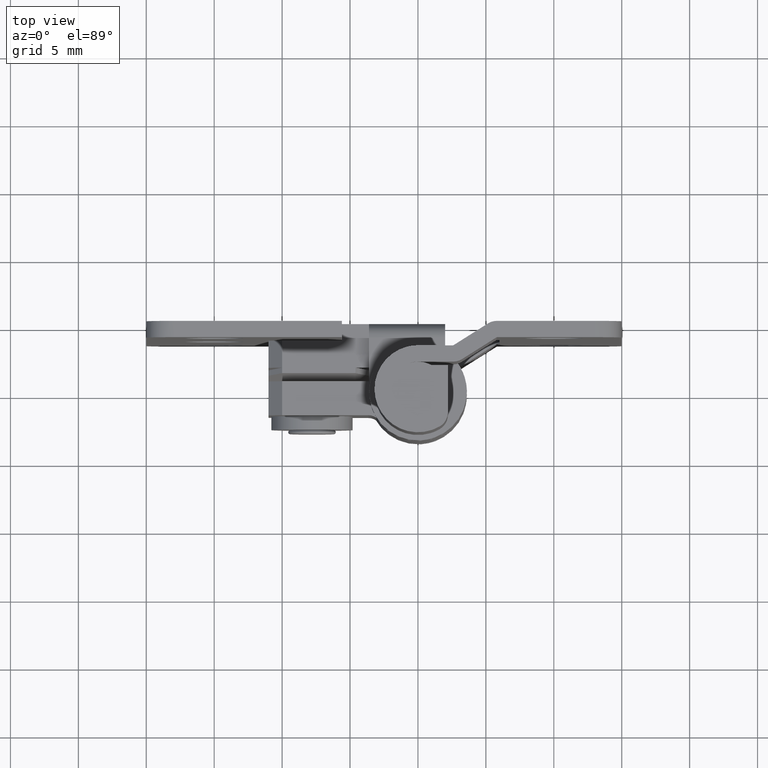
[diagram: clean part render]
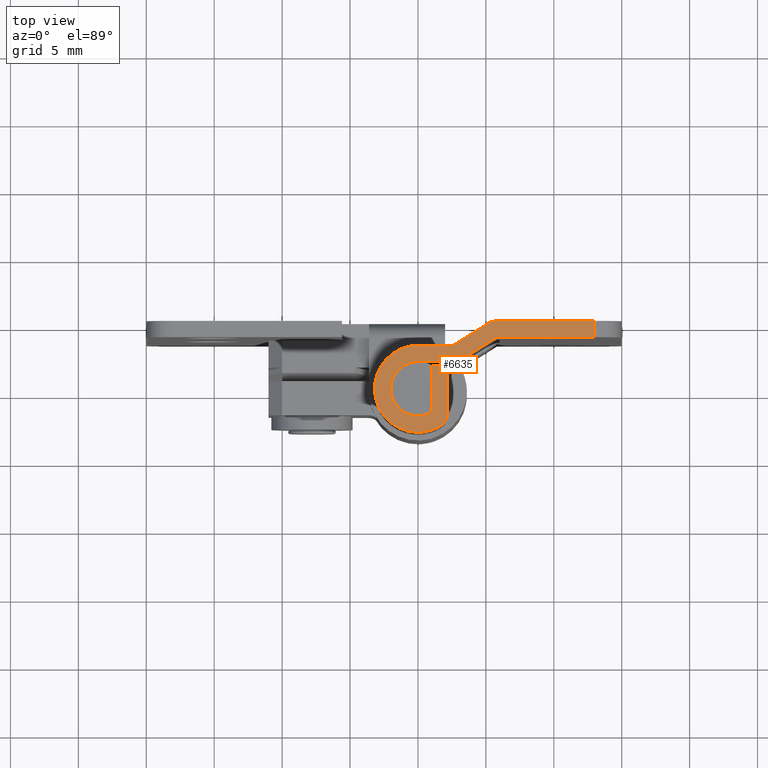
[diagram: same view with one face highlighted and labeled with its STEP entity id]
A machine part, top view. The second image highlights one B-rep face of the part: STEP entity #6635.
In plain terms, the highlighted face is a freeform B-spline surface patch.
Its self-contained STEP definition (entity closure, byte-faithful):
#6042=CARTESIAN_POINT('',(2.600000000000000,3.200000000000000,40.0));
#6043=VERTEX_POINT('',#6042);
#6056=CARTESIAN_POINT('',(0.0,3.200000000000000,40.0));
#6057=VERTEX_POINT('',#6056);
#6063=CARTESIAN_POINT('',(0.0,3.200000000000000,40.0));
#6064=CARTESIAN_POINT('',(2.600000000000000,3.200000000000000,40.0));
#6065=QUASI_UNIFORM_CURVE('',1,(#6063,#6064),.UNSPECIFIED.,.F.,.U.);
#6066=EDGE_CURVE('',#6057,#6043,#6065,.T.);
#6119=CARTESIAN_POINT('',(1.600000000000000,-2.771281484541325,40.0));
#6120=VERTEX_POINT('',#6119);
#6126=CARTESIAN_POINT('',(1.600000000000000,-2.771281484541325,40.0));
#6127=CARTESIAN_POINT('',(1.361976085491248,-2.908802801799765,40.000000000000043));
#6128=CARTESIAN_POINT('',(0.978146849171513,-3.068563458373547,39.999999999999957));
#6129=CARTESIAN_POINT('',(0.408372222250976,-3.184908883142118,40.000000000000057));
#6130=CARTESIAN_POINT('',(-0.111598217695946,-3.215280942054589,39.999999999999929));
#6131=CARTESIAN_POINT('',(-0.614411519151095,-3.154300734232679,39.999999999999893));
#6132=CARTESIAN_POINT('',(-1.143934917505208,-3.003079992450045,40.000000000000057));
#6133=CARTESIAN_POINT('',(-1.686639468836813,-2.750528360498337,39.999999999999957));
#6134=CARTESIAN_POINT('',(-2.185873069118856,-2.364991669613846,40.000000000000050));
#6135=CARTESIAN_POINT('',(-2.579551006673745,-1.916022083609085,39.999999999999943));
#6136=CARTESIAN_POINT('',(-2.824772323558346,-1.527023145040749,40.000000000000192));
#6137=CARTESIAN_POINT('',(-3.024053063004494,-1.079922584859346,39.999999999999773));
#6138=CARTESIAN_POINT('',(-3.174526604767874,-0.549012295705660,40.000000000000860));
#6139=CARTESIAN_POINT('',(-3.218695570647051,0.033448955214147,39.999999999999652));
#6140=CARTESIAN_POINT('',(-3.146119393905727,0.687814086972206,39.999999999999773));
#6141=CARTESIAN_POINT('',(-2.957486991715308,1.289705516346566,40.000000000001187));
#6142=CARTESIAN_POINT('',(-2.595506479235882,1.913701223879528,39.999999999999837));
#6143=CARTESIAN_POINT('',(-2.108145502048423,2.447075327286825,39.999999999999872));
#6144=CARTESIAN_POINT('',(-1.508957944951590,2.851859694780920,40.000000000000973));
#6145=CARTESIAN_POINT('',(-0.794077810380712,3.130963509948946,39.999999999997520));
#6146=CARTESIAN_POINT('',(-0.290168953598747,3.200099559896983,40.000000000002949));
#6147=CARTESIAN_POINT('',(0.0,3.200000000000000,40.0));
#6148=B_SPLINE_CURVE_WITH_KNOTS('',3,(#6126,#6127,#6128,#6129,#6130,#6131,#6132,#6133,#6134,#6135,#6136,#6137,#6138,#6139,#6140,#6141,#6142,#6143,#6144,#6145,#6146,#6147),.UNSPECIFIED.,.F.,.U.,(4,1,1,1,1,1,1,1,1,1,1,1,1,1,1,1,1,1,1,4),(0.000000037295850,0.824661688026193,1.237008971782856,1.740978807537719,2.382399789538710,2.748928572608282,3.390347981236404,4.169176599464301,4.627330256203658,5.177118486213666,5.543647460512113,6.093435218893293,6.826490925568923,7.284642602652983,8.063468035179742,8.704891065617211,9.437943599345154,10.216814483756290,10.858223633495010,11.728712708307910),.UNSPECIFIED.);
#6149=EDGE_CURVE('',#6120,#6057,#6148,.T.);
#6189=CARTESIAN_POINT('',(5.159705999999900,4.814901000000000,40.0));
#6190=VERTEX_POINT('',#6189);
#6196=CARTESIAN_POINT('',(5.800000000000000,5.0,40.0));
#6197=VERTEX_POINT('',#6196);
#6198=CARTESIAN_POINT('',(5.159705999999900,4.814901000000000,40.0));
#6199=CARTESIAN_POINT('',(5.453098384307034,5.0,40.000000000000007));
#6200=CARTESIAN_POINT('',(5.800000000000000,5.0,40.0));
#6208=(BOUNDED_CURVE()B_SPLINE_CURVE(2,(#6198,#6199,#6200),.UNSPECIFIED.,.F.,.U.)CURVE()GEOMETRIC_REPRESENTATION_ITEM()QUASI_UNIFORM_CURVE()RATIONAL_B_SPLINE_CURVE((1.0,0.960664015743750,1.0))REPRESENTATION_ITEM(''));
#6209=EDGE_CURVE('',#6190,#6197,#6208,.T.);
#6245=CARTESIAN_POINT('',(2.600000000000000,3.200000000000000,40.0));
#6246=CARTESIAN_POINT('',(5.159705999999900,4.814901000000000,40.0));
#6247=QUASI_UNIFORM_CURVE('',1,(#6245,#6246),.UNSPECIFIED.,.F.,.U.);
#6248=EDGE_CURVE('',#6043,#6190,#6247,.T.);
#6473=CARTESIAN_POINT('',(13.0,5.0,40.0));
#6474=VERTEX_POINT('',#6473);
#6490=CARTESIAN_POINT('',(13.0,3.800000000000000,40.0));
#6491=VERTEX_POINT('',#6490);
#6492=CARTESIAN_POINT('',(13.0,3.800000000000000,40.0));
#6493=CARTESIAN_POINT('',(13.0,5.0,40.0));
#6494=QUASI_UNIFORM_CURVE('',1,(#6492,#6493),.UNSPECIFIED.,.F.,.U.);
#6495=EDGE_CURVE('',#6491,#6474,#6494,.T.);
#6520=CARTESIAN_POINT('',(-4.008678475523623,-3.607543169045512,40.0));
#6521=CARTESIAN_POINT('',(13.809166069257611,-3.607543169045512,40.0));
#6522=CARTESIAN_POINT('',(-4.008678475523623,5.409492829467191,40.0));
#6523=CARTESIAN_POINT('',(13.809166069257611,5.409492829467191,40.0));
#6524=B_SPLINE_SURFACE_WITH_KNOTS('',1,1,((#6520,#6522),(#6521,#6523)),.UNSPECIFIED.,.F.,.F.,.U.,(2,2),(2,2),(0.0,17.817844544781231),(0.0,9.017035998512704),.UNSPECIFIED.);
#6525=CARTESIAN_POINT('',(5.800000000000000,3.800000000000000,40.0));
#6526=VERTEX_POINT('',#6525);
#6527=CARTESIAN_POINT('',(13.0,3.800000000000000,40.0));
#6528=CARTESIAN_POINT('',(5.800000000000000,3.800000000000000,40.0));
#6529=QUASI_UNIFORM_CURVE('',1,(#6527,#6528),.UNSPECIFIED.,.F.,.U.);
#6530=EDGE_CURVE('',#6491,#6526,#6529,.T.);
#6531=ORIENTED_EDGE('',*,*,#6530,.F.);
#6532=ORIENTED_EDGE('',*,*,#6495,.T.);
#6533=CARTESIAN_POINT('',(5.800000000000000,5.0,40.0));
#6534=CARTESIAN_POINT('',(13.0,5.0,40.0));
#6535=QUASI_UNIFORM_CURVE('',1,(#6533,#6534),.UNSPECIFIED.,.F.,.U.);
#6536=EDGE_CURVE('',#6197,#6474,#6535,.T.);
#6537=ORIENTED_EDGE('',*,*,#6536,.F.);
#6538=ORIENTED_EDGE('',*,*,#6209,.F.);
#6539=ORIENTED_EDGE('',*,*,#6248,.F.);
#6540=ORIENTED_EDGE('',*,*,#6066,.F.);
#6541=ORIENTED_EDGE('',*,*,#6149,.F.);
#6542=CARTESIAN_POINT('',(2.200000000000000,-1.732051000000000,40.0));
#6543=VERTEX_POINT('',#6542);
#6544=CARTESIAN_POINT('',(2.200000000000000,-1.732051000000000,40.0));
#6545=CARTESIAN_POINT('',(2.200000000000000,-2.424871323027550,40.0));
#6546=CARTESIAN_POINT('',(1.600000000000000,-2.771281484541326,40.0));
#6554=(BOUNDED_CURVE()B_SPLINE_CURVE(2,(#6544,#6545,#6546),.UNSPECIFIED.,.F.,.U.)CURVE()GEOMETRIC_REPRESENTATION_ITEM()QUASI_UNIFORM_CURVE()RATIONAL_B_SPLINE_CURVE((1.0,0.866025403784439,1.0))REPRESENTATION_ITEM(''));
#6555=EDGE_CURVE('',#6543,#6120,#6554,.T.);
#6556=ORIENTED_EDGE('',*,*,#6555,.F.);
#6557=CARTESIAN_POINT('',(2.200000000000000,1.732051000000000,40.0));
#6558=VERTEX_POINT('',#6557);
#6559=CARTESIAN_POINT('',(2.200000000000000,1.732051000000000,40.0));
#6560=CARTESIAN_POINT('',(2.200000000000000,-1.732051000000000,40.0));
#6561=QUASI_UNIFORM_CURVE('',1,(#6559,#6560),.UNSPECIFIED.,.F.,.U.);
#6562=EDGE_CURVE('',#6558,#6543,#6561,.T.);
#6563=ORIENTED_EDGE('',*,*,#6562,.F.);
#6564=CARTESIAN_POINT('',(1.0,1.732051000000000,40.0));
#6565=VERTEX_POINT('',#6564);
#6566=CARTESIAN_POINT('',(1.0,1.732051000000000,40.0));
#6567=CARTESIAN_POINT('',(2.200000000000000,1.732051000000000,40.0));
#6568=QUASI_UNIFORM_CURVE('',1,(#6566,#6567),.UNSPECIFIED.,.F.,.U.);
#6569=EDGE_CURVE('',#6565,#6558,#6568,.T.);
#6570=ORIENTED_EDGE('',*,*,#6569,.F.);
#6571=CARTESIAN_POINT('',(1.0,-1.732050807568875,40.0));
#6572=VERTEX_POINT('',#6571);
#6573=CARTESIAN_POINT('',(1.0,-1.732050807568875,40.0));
#6574=CARTESIAN_POINT('',(1.0,1.732051000000000,40.0));
#6575=QUASI_UNIFORM_CURVE('',1,(#6573,#6574),.UNSPECIFIED.,.F.,.U.);
#6576=EDGE_CURVE('',#6572,#6565,#6575,.T.);
#6577=ORIENTED_EDGE('',*,*,#6576,.F.);
#6578=CARTESIAN_POINT('',(0.0,2.0,40.0));
#6579=VERTEX_POINT('',#6578);
#6580=CARTESIAN_POINT('',(1.0,-1.732050807568875,40.0));
#6581=CARTESIAN_POINT('',(0.892548971867968,-1.794101749354275,39.999999999999979));
#6582=CARTESIAN_POINT('',(0.657339972397388,-1.902112396401274,40.000000000000050));
#6583=CARTESIAN_POINT('',(0.293704746472982,-1.990054330566589,40.0));
#6584=CARTESIAN_POINT('',(-0.050730507285586,-2.007665055393283,39.999999999999993));
#6585=CARTESIAN_POINT('',(-0.374252120514117,-1.973129121477625,40.000000000000142));
#6586=CARTESIAN_POINT('',(-0.697955805379763,-1.885692338898485,39.999999999999957));
#6587=CARTESIAN_POINT('',(-1.009776854341478,-1.737815241203232,40.000000000000412));
#6588=CARTESIAN_POINT('',(-1.267902350158980,-1.555615155578497,39.999999999999453));
#6589=CARTESIAN_POINT('',(-1.497152642582068,-1.338674460542927,40.000000000001002));
#6590=CARTESIAN_POINT('',(-1.742660542528943,-1.019554778148468,39.999999999999723));
#6591=CARTESIAN_POINT('',(-1.919297179765557,-0.623212201494909,39.999999999999233));
#6592=CARTESIAN_POINT('',(-1.993495360820169,-0.237486974763703,40.000000000000377));
#6593=CARTESIAN_POINT('',(-2.006084531053451,0.077898070963916,39.999999999999737));
#6594=CARTESIAN_POINT('',(-1.970198203783045,0.401632916779117,40.000000000000220));
#6595=CARTESIAN_POINT('',(-1.874431031028726,0.723186948046299,39.999999999999723));
#6596=CARTESIAN_POINT('',(-1.706570209731583,1.067186984533113,40.000000000001272));
#6597=CARTESIAN_POINT('',(-1.468822540058378,1.381669701075937,39.999999999999481));
#6598=CARTESIAN_POINT('',(-1.153716537308663,1.647877346249154,40.000000000000142));
#6599=CARTESIAN_POINT('',(-0.861964243892377,1.813135007644443,40.000000000000163));
#6600=CARTESIAN_POINT('',(-0.486727553864953,1.956574696089116,40.000000000000377));
#6601=CARTESIAN_POINT('',(-0.200452376753293,2.000107792222729,39.999999999997293));
#6602=CARTESIAN_POINT('',(0.0,2.0,40.0));
#6603=B_SPLINE_CURVE_WITH_KNOTS('',3,(#6580,#6581,#6582,#6583,#6584,#6585,#6586,#6587,#6588,#6589,#6590,#6591,#6592,#6593,#6594,#6595,#6596,#6597,#6598,#6599,#6600,#6601,#6602),.UNSPECIFIED.,.F.,.U.,(4,1,1,1,1,1,1,1,1,1,1,1,1,1,1,1,1,1,1,1,4),(0.000000127506826,0.372243528940531,0.773123134357077,1.116745771139846,1.403094847494124,1.746711185810240,2.118962268246423,2.433956736045997,2.691641251459510,3.063892109887954,3.636588977773427,3.980205613680410,4.237917168389893,4.581546193683469,4.953770470330742,5.240116957764974,5.726909760542648,6.127794898374464,6.471417465146975,6.729133038842816,7.330445461537801),.UNSPECIFIED.);
#6604=EDGE_CURVE('',#6572,#6579,#6603,.T.);
#6605=ORIENTED_EDGE('',*,*,#6604,.T.);
#6606=CARTESIAN_POINT('',(2.600000000000000,2.0,40.0));
#6607=VERTEX_POINT('',#6606);
#6608=CARTESIAN_POINT('',(2.600000000000000,2.0,40.0));
#6609=CARTESIAN_POINT('',(0.0,2.0,40.0));
#6610=QUASI_UNIFORM_CURVE('',1,(#6608,#6609),.UNSPECIFIED.,.F.,.U.);
#6611=EDGE_CURVE('',#6607,#6579,#6610,.T.);
#6612=ORIENTED_EDGE('',*,*,#6611,.F.);
#6613=CARTESIAN_POINT('',(3.240294000000000,2.185099000000000,40.0));
#6614=VERTEX_POINT('',#6613);
#6615=CARTESIAN_POINT('',(3.240294000000000,2.185099000000000,40.0));
#6616=CARTESIAN_POINT('',(2.946901615692920,2.0,40.0));
#6617=CARTESIAN_POINT('',(2.600000000000000,2.0,40.0));
#6625=(BOUNDED_CURVE()B_SPLINE_CURVE(2,(#6615,#6616,#6617),.UNSPECIFIED.,.F.,.U.)CURVE()GEOMETRIC_REPRESENTATION_ITEM()QUASI_UNIFORM_CURVE()RATIONAL_B_SPLINE_CURVE((1.0,0.960664015743759,1.0))REPRESENTATION_ITEM(''));
#6626=EDGE_CURVE('',#6614,#6607,#6625,.T.);
#6627=ORIENTED_EDGE('',*,*,#6626,.F.);
#6628=CARTESIAN_POINT('',(5.800000000000000,3.800000000000000,40.0));
#6629=CARTESIAN_POINT('',(3.240294000000000,2.185099000000000,40.0));
#6630=QUASI_UNIFORM_CURVE('',1,(#6628,#6629),.UNSPECIFIED.,.F.,.U.);
#6631=EDGE_CURVE('',#6526,#6614,#6630,.T.);
#6632=ORIENTED_EDGE('',*,*,#6631,.F.);
#6633=EDGE_LOOP('',(#6531,#6532,#6537,#6538,#6539,#6540,#6541,#6556,#6563,#6570,#6577,#6605,#6612,#6627,#6632));
#6634=FACE_OUTER_BOUND('',#6633,.T.);
#6635=ADVANCED_FACE('',(#6634),#6524,.T.);